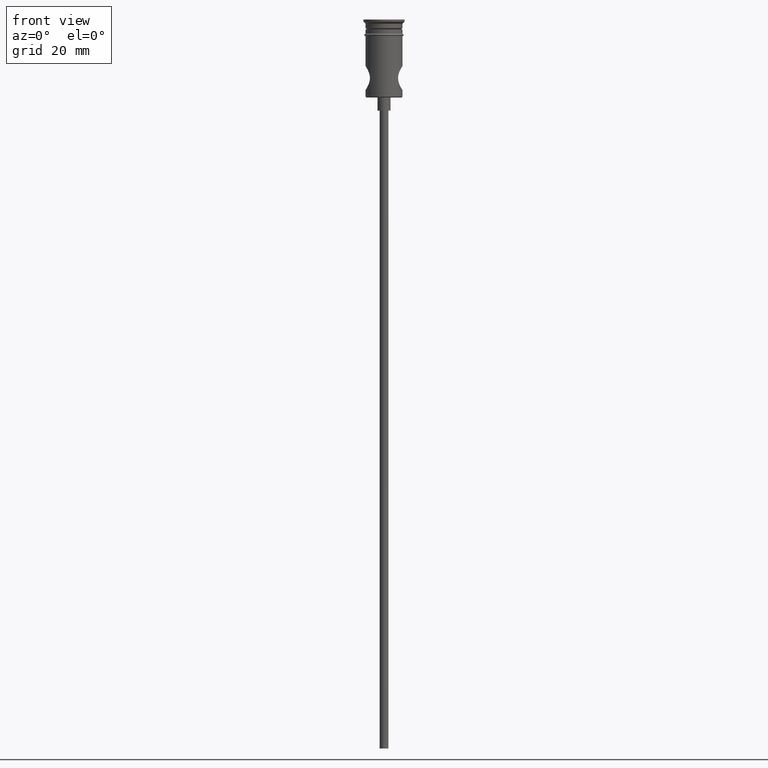
[diagram: clean part render]
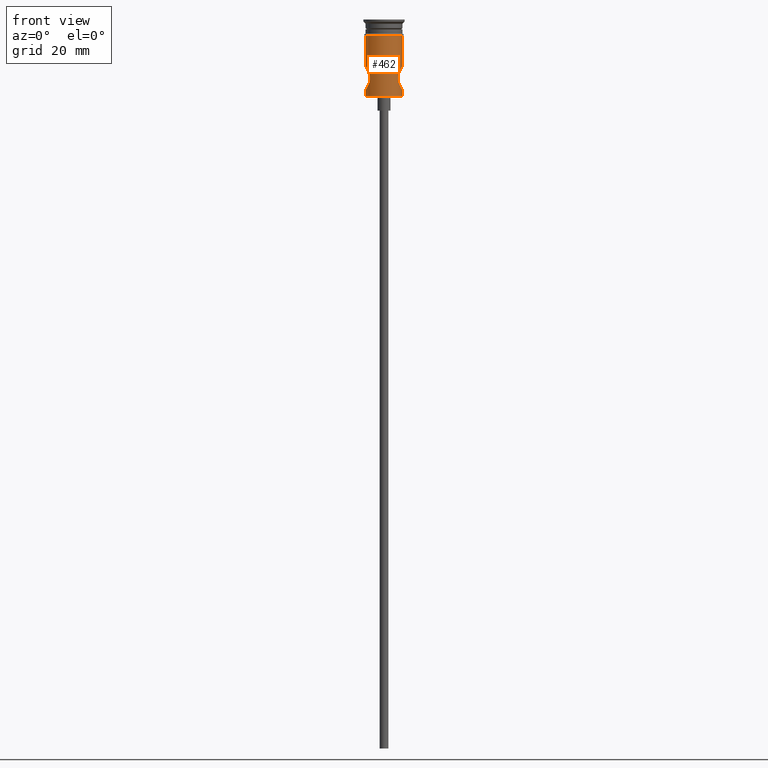
[diagram: same view with one face highlighted and labeled with its STEP entity id]
A machine part, front view. The second image highlights one B-rep face of the part: STEP entity #462.
In plain terms, the highlighted cylindrical surface (edge-blend (fillet) strip) has radius 4.25 mm, axis along (-0, -0, 1).
Its self-contained STEP definition (entity closure, byte-faithful):
#27 = B_SPLINE_CURVE_WITH_KNOTS ( 'NONE', 3,
 ( #433, #748, #1196, #105, #975, #214, #769, #425, #98, #1416, #418, #1314, #862, #1400, #644, #873, #852, #1187, #303, #550, #1081, #577, #1097, #1293, #763, #1309, #198, #1102, #449, #91 ),
 .UNSPECIFIED., .F., .F.,
 ( 4, 2, 2, 2, 2, 2, 2, 2, 2, 2, 2, 2, 2, 2, 4 ),
 ( 0.008865950887352312335, 0.009419240771521925071, 0.009972530655691537807, 0.01107911042403076501, 0.01163240030820037949, 0.01218569019236999396, 0.01273898007653961016, 0.01329226996070922463, 0.01384555984487884084, 0.01439884972904845531, 0.01495213961321806978, 0.01550542949738768425, 0.01605871938155729872, 0.01661200926572691319, 0.01771858903406614560 ),
 .UNSPECIFIED. ) ;
#29 = CARTESIAN_POINT ( 'NONE',  ( -3.902301534695393759, -1.690823709015212728, -11.32411174488600203 ) ) ;
#67 = CARTESIAN_POINT ( 'NONE',  ( -4.155334731455366359, -0.9083529674580627100, -16.10190042141340427 ) ) ;
#91 = CARTESIAN_POINT ( 'NONE',  ( 4.249999999999997335, 0.000000000000000000, -16.25000000000000000 ) ) ;
#98 = CARTESIAN_POINT ( 'NONE',  ( 3.647847344689137294, -2.183825531822105592, -11.81953350730051788 ) ) ;
#105 = CARTESIAN_POINT ( 'NONE',  ( 4.190207837038134819, -0.7335316360740457009, -10.84318649086376318 ) ) ;
#111 = CIRCLE ( 'NONE', #681, 4.249999999999999112 ) ;
#135 = ORIENTED_EDGE ( 'NONE', *, *, #517, .F. ) ;
#147 = DIRECTION ( 'NONE',  ( 1.000000000000000000, 0.000000000000000000, 0.000000000000000000 ) ) ;
#148 = CARTESIAN_POINT ( 'NONE',  ( -3.317732867736307600, -2.656581032706775591, -14.23383826006679698 ) ) ;
#156 = CARTESIAN_POINT ( 'NONE',  ( -3.903649545419221045, -1.703087824547434570, -15.68708491731533883 ) ) ;
#162 = EDGE_CURVE ( 'NONE', #334, #552, #27, .T. ) ;
#164 = CARTESIAN_POINT ( 'NONE',  ( -3.257287351234153583, -2.730357719509510339, -13.87561695753797686 ) ) ;
#176 = EDGE_CURVE ( 'NONE', #641, #193, #1302, .T. ) ;
#193 = VERTEX_POINT ( 'NONE', #1216 ) ;
#198 = CARTESIAN_POINT ( 'NONE',  ( 4.067922794682170107, -1.242497466100458858, -15.95989443293908927 ) ) ;
#214 = CARTESIAN_POINT ( 'NONE',  ( 4.024918142879832850, -1.407629767315599523, -11.10993618836867469 ) ) ;
#217 = EDGE_CURVE ( 'NONE', #641, #963, #321, .T. ) ;
#224 = CARTESIAN_POINT ( 'NONE',  ( 4.249999999999999112, 0.000000000000000000, -3.799999999999998934 ) ) ;
#238 = CARTESIAN_POINT ( 'NONE',  ( 0.000000000000000000, 0.000000000000000000, -3.799999999999998934 ) ) ;
#242 = VECTOR ( 'NONE', #799, 1000.000000000000000 ) ;
#258 = DIRECTION ( 'NONE',  ( 1.000000000000000000, 0.000000000000000000, 0.000000000000000000 ) ) ;
#269 = LINE ( 'NONE', #495, #242 ) ;
#273 = CARTESIAN_POINT ( 'NONE',  ( -4.190033994520313776, -0.7344077564868169983, -10.84346068291941201 ) ) ;
#303 = CARTESIAN_POINT ( 'NONE',  ( 3.360420657424080026, -2.603382055344573232, -14.40388255281498076 ) ) ;
#307 = EDGE_CURVE ( 'NONE', #963, #552, #269, .T. ) ;
#321 = CIRCLE ( 'NONE', #773, 4.249999999999997335 ) ;
#326 = CARTESIAN_POINT ( 'NONE',  ( 0.000000000000000000, 0.000000000000000000, -17.79999999999995808 ) ) ;
#331 = DIRECTION ( 'NONE',  ( -0.000000000000000000, -0.000000000000000000, 1.000000000000000000 ) ) ;
#334 = VERTEX_POINT ( 'NONE', #1036 ) ;
#344 = CARTESIAN_POINT ( 'NONE',  ( 0.000000000000000000, 0.000000000000000000, 0.000000000000000000 ) ) ;
#354 = CARTESIAN_POINT ( 'NONE',  ( -4.155442691875919969, -0.9081020294093200551, -10.89791699256592494 ) ) ;
#357 = CARTESIAN_POINT ( 'NONE',  ( 4.249999999999997335, 0.000000000000000000, -16.25000000000000000 ) ) ;
#385 = CARTESIAN_POINT ( 'NONE',  ( -3.463282699767082029, -2.464882569099720477, -12.26760260682620718 ) ) ;
#403 = CARTESIAN_POINT ( 'NONE',  ( -4.249999999999997335, 5.204748896376248727E-16, 0.000000000000000000 ) ) ;
#415 = DIRECTION ( 'NONE',  ( -0.000000000000000000, -0.000000000000000000, 1.000000000000000000 ) ) ;
#418 = CARTESIAN_POINT ( 'NONE',  ( 3.463585092110388786, -2.464449046115352537, -12.26684130713697840 ) ) ;
#425 = CARTESIAN_POINT ( 'NONE',  ( 3.712306572358252232, -2.073768640790504936, -11.68546380521985384 ) ) ;
#433 = CARTESIAN_POINT ( 'NONE',  ( 4.249999999999997335, -5.964156999285768506E-20, -10.75000000000000000 ) ) ;
#435 = VERTEX_POINT ( 'NONE', #224 ) ;
#444 = ORIENTED_EDGE ( 'NONE', *, *, #1020, .T. ) ;
#449 = CARTESIAN_POINT ( 'NONE',  ( 4.249999999999997335, -0.3748030667232212787, -16.25000000000000000 ) ) ;
#452 = CARTESIAN_POINT ( 'NONE',  ( -4.249999999999999112, 5.204748896376249713E-16, -3.799999999999998934 ) ) ;
#453 = CARTESIAN_POINT ( 'NONE',  ( -3.840622235673528007, -1.825278692726477692, -11.43557704835951760 ) ) ;
#459 = EDGE_LOOP ( 'NONE', ( #1160, #1128, #514, #938, #444, #135, #1335, #805 ) ) ;
#462 = ADVANCED_FACE ( 'NONE', ( #891 ), #1329, .T. ) ;
#480 = DIRECTION ( 'NONE',  ( -0.000000000000000000, -0.000000000000000000, 1.000000000000000000 ) ) ;
#484 = CARTESIAN_POINT ( 'NONE',  ( -4.237534661787413448, -0.3728801659703385174, -10.76915465875327271 ) ) ;
#494 = CARTESIAN_POINT ( 'NONE',  ( -3.360185467375182533, -2.603675625495278645, -12.59704781336165524 ) ) ;
#495 = CARTESIAN_POINT ( 'NONE',  ( 4.249999999999997335, 0.000000000000000000, 0.000000000000000000 ) ) ;
#504 = CARTESIAN_POINT ( 'NONE',  ( -4.249999999999997335, 0.000000000000000000, -16.25000000000000000 ) ) ;
#513 = CARTESIAN_POINT ( 'NONE',  ( -3.713419268557901276, -2.071747888570477425, -15.31678227358735889 ) ) ;
#514 = ORIENTED_EDGE ( 'NONE', *, *, #307, .T. ) ;
#517 = EDGE_CURVE ( 'NONE', #771, #435, #111, .T. ) ;
#550 = CARTESIAN_POINT ( 'NONE',  ( 3.463853683506851411, -2.464090659896389646, -14.73404173964449981 ) ) ;
#552 = VERTEX_POINT ( 'NONE', #357 ) ;
#553 = AXIS2_PLACEMENT_3D ( 'NONE', #344, #780, #147 ) ;
#556 = CARTESIAN_POINT ( 'NONE',  ( -4.249999999999997335, 5.205345311974756415E-16, -10.75000000000000000 ) ) ;
#577 = CARTESIAN_POINT ( 'NONE',  ( 3.646730217503171279, -2.185675347730814622, -15.17803752739326839 ) ) ;
#584 = CARTESIAN_POINT ( 'NONE',  ( -3.256261808067939967, -2.731577754047776807, -13.13260952066415577 ) ) ;
#610 = CARTESIAN_POINT ( 'NONE',  ( -4.249999999999999112, -0.1876833508229764913, -16.25000000000000355 ) ) ;
#641 = VERTEX_POINT ( 'NONE', #1388 ) ;
#644 = CARTESIAN_POINT ( 'NONE',  ( 3.240527330953798746, -2.749815025658500112, -13.31270839782863291 ) ) ;
#681 = AXIS2_PLACEMENT_3D ( 'NONE', #238, #480, #258 ) ;
#697 = CARTESIAN_POINT ( 'NONE',  ( -3.464973689711408511, -2.462503661352578810, -14.73701184486718319 ) ) ;
#748 = CARTESIAN_POINT ( 'NONE',  ( 4.249999999999997335, -0.1847159666058112992, -10.75000000000000000 ) ) ;
#763 = CARTESIAN_POINT ( 'NONE',  ( 3.901047162632663934, -1.693811570780205056, -15.67366377900273555 ) ) ;
#769 = CARTESIAN_POINT ( 'NONE',  ( 3.903270111302728829, -1.704091631636142301, -11.31349511279738351 ) ) ;
#771 = VERTEX_POINT ( 'NONE', #452 ) ;
#773 = AXIS2_PLACEMENT_3D ( 'NONE', #326, #1285, #983 ) ;
#780 = DIRECTION ( 'NONE',  ( -0.000000000000000000, -0.000000000000000000, 1.000000000000000000 ) ) ;
#798 = CARTESIAN_POINT ( 'NONE',  ( -3.523702571072897083, -2.378944658106735499, -14.89054770374115755 ) ) ;
#799 = DIRECTION ( 'NONE',  ( -0.000000000000000000, -0.000000000000000000, 1.000000000000000000 ) ) ;
#805 = ORIENTED_EDGE ( 'NONE', *, *, #1231, .F. ) ;
#822 = DIRECTION ( 'NONE',  ( -0.000000000000000000, -0.000000000000000000, 1.000000000000000000 ) ) ;
#826 = CARTESIAN_POINT ( 'NONE',  ( -3.240228426298894515, -2.750167230217083425, -13.31605301161300225 ) ) ;
#852 = CARTESIAN_POINT ( 'NONE',  ( 3.256642946224108215, -2.731120776416927409, -13.87021416548673969 ) ) ;
#862 = CARTESIAN_POINT ( 'NONE',  ( 3.317391764057896264, -2.657012432191005136, -12.76717152618819284 ) ) ;
#873 = CARTESIAN_POINT ( 'NONE',  ( 3.240215677518331283, -2.750182252353511991, -13.68181968656044667 ) ) ;
#891 = FACE_OUTER_BOUND ( 'NONE', #459, .T. ) ;
#915 = CARTESIAN_POINT ( 'NONE',  ( -4.249999999999996447, -0.1849937454683881766, -10.74999999999999822 ) ) ;
#936 = CARTESIAN_POINT ( 'NONE',  ( -4.249999999999997335, 5.205345311974756415E-16, -10.75000000000000000 ) ) ;
#938 = ORIENTED_EDGE ( 'NONE', *, *, #162, .F. ) ;
#945 = CARTESIAN_POINT ( 'NONE',  ( -3.362015581049109247, -2.601310859038222123, -14.40956275273693521 ) ) ;
#963 = VERTEX_POINT ( 'NONE', #1062 ) ;
#967 = CARTESIAN_POINT ( 'NONE',  ( -4.249999999999997335, 5.204748896376248727E-16, 0.000000000000000000 ) ) ;
#975 = CARTESIAN_POINT ( 'NONE',  ( 4.155620439744574846, -0.9072158869068334131, -10.89763742324026552 ) ) ;
#983 = DIRECTION ( 'NONE',  ( -1.000000000000000000, 0.000000000000000000, 0.000000000000000000 ) ) ;
#998 = CARTESIAN_POINT ( 'NONE',  ( -4.015772538107726497, -1.400147493956907407, -11.12661391491455909 ) ) ;
#1006 = CARTESIAN_POINT ( 'NONE',  ( -3.712446595946066186, -2.073586683869199199, -11.68513838162200358 ) ) ;
#1020 = EDGE_CURVE ( 'NONE', #334, #435, #1186, .T. ) ;
#1028 = VECTOR ( 'NONE', #415, 1000.000000000000000 ) ;
#1030 = B_SPLINE_CURVE_WITH_KNOTS ( 'NONE', 3,
 ( #504, #610, #1153, #1057, #67, #1369, #156, #513, #1245, #798, #697, #945, #148, #164, #1389, #826, #584, #1034, #494, #385, #1138, #1255, #1006, #453, #29, #998, #1219, #354, #273, #484, #915, #936 ),
 .UNSPECIFIED., .F., .F.,
 ( 4, 2, 2, 2, 2, 2, 2, 2, 2, 2, 2, 2, 2, 2, 2, 4 ),
 ( 0.000000000000000000, 0.0005541219304595177862, 0.001108243860919035572, 0.002216487721838075482, 0.002770609652297595545, 0.003324731582757115608, 0.003878853513216635237, 0.004432975443676155300, 0.004987097374135674929, 0.005541219304595194559, 0.006095341235054715055, 0.006649463165514233817, 0.007203585095973753447, 0.007757707026433273076, 0.008311828956892794440, 0.008865950887352312335 ),
 .UNSPECIFIED. ) ;
#1034 = CARTESIAN_POINT ( 'NONE',  ( -3.316522469792354322, -2.658088918086265906, -12.77126404352310196 ) ) ;
#1036 = CARTESIAN_POINT ( 'NONE',  ( 4.249999999999997335, -5.964156999285768506E-20, -10.75000000000000000 ) ) ;
#1057 = CARTESIAN_POINT ( 'NONE',  ( -4.190603293377628269, -0.7309107395663115847, -16.15743406878304711 ) ) ;
#1062 = CARTESIAN_POINT ( 'NONE',  ( 4.249999999999997335, 0.000000000000000000, -17.79999999999995808 ) ) ;
#1080 = EDGE_CURVE ( 'NONE', #1158, #771, #1090, .T. ) ;
#1081 = CARTESIAN_POINT ( 'NONE',  ( 3.522745161808382264, -2.380353866525853679, -14.88812900666103900 ) ) ;
#1085 = VECTOR ( 'NONE', #822, 1000.000000000000000 ) ;
#1090 = LINE ( 'NONE', #403, #1085 ) ;
#1097 = CARTESIAN_POINT ( 'NONE',  ( 3.712426123095563746, -2.073528200962002188, -15.31476372687120246 ) ) ;
#1101 = VECTOR ( 'NONE', #331, 1000.000000000000000 ) ;
#1102 = CARTESIAN_POINT ( 'NONE',  ( 4.198035567893796838, -0.7457751924957479739, -16.17129962006159261 ) ) ;
#1128 = ORIENTED_EDGE ( 'NONE', *, *, #217, .T. ) ;
#1138 = CARTESIAN_POINT ( 'NONE',  ( -3.523327046384830741, -2.379510545741978067, -12.11037569948939741 ) ) ;
#1153 = CARTESIAN_POINT ( 'NONE',  ( -4.237633467721872549, -0.3712803050584276843, -16.23099565620633911 ) ) ;
#1158 = VERTEX_POINT ( 'NONE', #556 ) ;
#1160 = ORIENTED_EDGE ( 'NONE', *, *, #176, .F. ) ;
#1186 = LINE ( 'NONE', #1259, #1028 ) ;
#1187 = CARTESIAN_POINT ( 'NONE',  ( 3.316708597254388824, -2.657854032008955869, -14.22930869200700954 ) ) ;
#1196 = CARTESIAN_POINT ( 'NONE',  ( 4.237714452335332282, -0.3710614493120016899, -10.76887567396049938 ) ) ;
#1216 = CARTESIAN_POINT ( 'NONE',  ( -4.249999999999997335, 0.000000000000000000, -16.25000000000000000 ) ) ;
#1219 = CARTESIAN_POINT ( 'NONE',  ( -4.068014576300313934, -1.242421292593817173, -11.03994418658763088 ) ) ;
#1231 = EDGE_CURVE ( 'NONE', #193, #1158, #1030, .T. ) ;
#1245 = CARTESIAN_POINT ( 'NONE',  ( -3.647785336404484102, -2.183922992056437806, -15.18032168571427043 ) ) ;
#1255 = CARTESIAN_POINT ( 'NONE',  ( -3.647647208285519582, -2.184164315469646400, -11.81995465034544956 ) ) ;
#1259 = CARTESIAN_POINT ( 'NONE',  ( 4.249999999999997335, 0.000000000000000000, 0.000000000000000000 ) ) ;
#1285 = DIRECTION ( 'NONE',  ( -0.000000000000000000, -0.000000000000000000, 1.000000000000000000 ) ) ;
#1293 = CARTESIAN_POINT ( 'NONE',  ( 3.839379489766063802, -1.827783371516099153, -15.56206074870781109 ) ) ;
#1302 = LINE ( 'NONE', #967, #1101 ) ;
#1309 = CARTESIAN_POINT ( 'NONE',  ( 4.015423691679791851, -1.401263422304992012, -15.87281956388753379 ) ) ;
#1314 = CARTESIAN_POINT ( 'NONE',  ( 3.360805570480984716, -2.602867017081773149, -12.59486312964815191 ) ) ;
#1329 = CYLINDRICAL_SURFACE ( 'NONE', #553, 4.249999999999997335 ) ;
#1335 = ORIENTED_EDGE ( 'NONE', *, *, #1080, .F. ) ;
#1369 = CARTESIAN_POINT ( 'NONE',  ( -4.025284254402694550, -1.406141545853144326, -15.89065464230831459 ) ) ;
#1388 = CARTESIAN_POINT ( 'NONE',  ( -4.249999999999997335, 5.204748896376248727E-16, -17.79999999999995808 ) ) ;
#1389 = CARTESIAN_POINT ( 'NONE',  ( -3.240514175250544415, -2.749830527279015335, -13.68891363090301461 ) ) ;
#1400 = CARTESIAN_POINT ( 'NONE',  ( 3.256546954943039474, -2.731246073005494157, -13.12980069484267176 ) ) ;
#1416 = CARTESIAN_POINT ( 'NONE',  ( 3.523640592887602896, -2.379042071033715455, -12.10959703295216450 ) ) ;